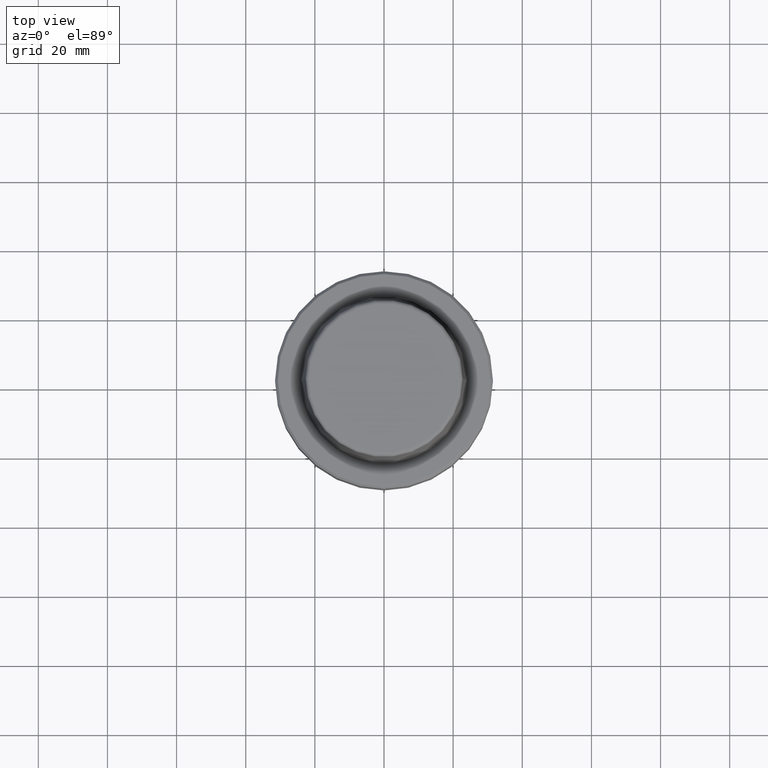
[diagram: clean part render]
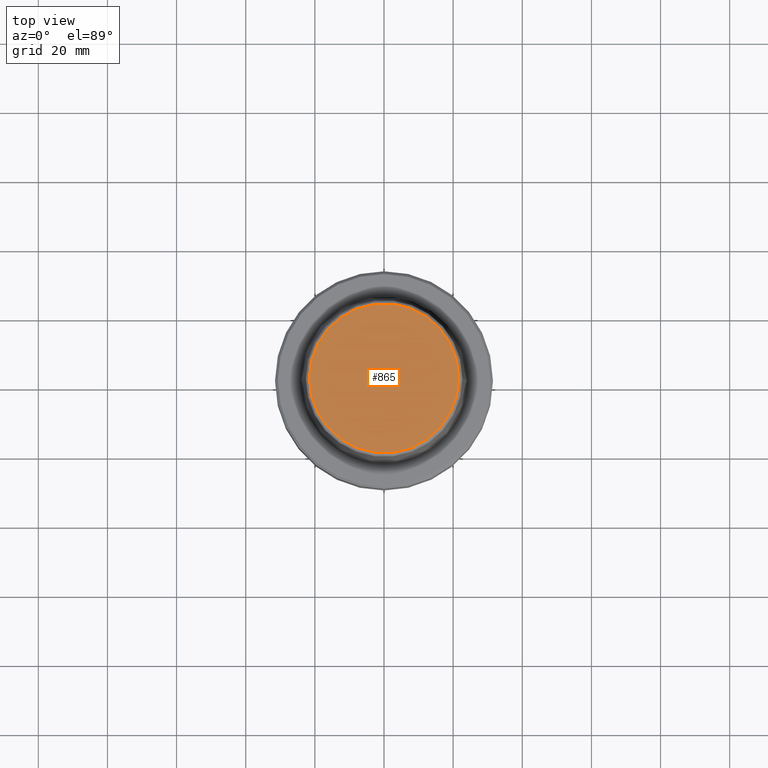
[diagram: same view with one face highlighted and labeled with its STEP entity id]
A machine part, top view. The second image highlights one B-rep face of the part: STEP entity #865.
In plain terms, the highlighted planar face has unit normal (0, 0, -1).
Its self-contained STEP definition (entity closure, byte-faithful):
#24 = CARTESIAN_POINT ( 'NONE',  ( 0.0000000000000000000, 0.0000000000000000000, 31.89999999999999900 ) ) ;
#41 = DIRECTION ( 'NONE',  ( 1.000000000000000000, 0.0000000000000000000, 0.0000000000000000000 ) ) ;
#153 = AXIS2_PLACEMENT_3D ( 'NONE', #713, #913, #328 ) ;
#175 = EDGE_CURVE ( 'NONE', #846, #964, #618, .T. ) ;
#223 = CARTESIAN_POINT ( 'NONE',  ( 21.58108272732117100, 0.0000000000000000000, 31.89999999999999900 ) ) ;
#245 = AXIS2_PLACEMENT_3D ( 'NONE', #894, #307, #988 ) ;
#307 = DIRECTION ( 'NONE',  ( -0.0000000000000000000, -0.0000000000000000000, 1.000000000000000000 ) ) ;
#328 = DIRECTION ( 'NONE',  ( -1.000000000000000000, 0.0000000000000000000, -0.0000000000000000000 ) ) ;
#383 = AXIS2_PLACEMENT_3D ( 'NONE', #24, #892, #41 ) ;
#393 = EDGE_LOOP ( 'NONE', ( #425, #774 ) ) ;
#425 = ORIENTED_EDGE ( 'NONE', *, *, #175, .T. ) ;
#520 = FACE_OUTER_BOUND ( 'NONE', #393, .T. ) ;
#618 = CIRCLE ( 'NONE', #383, 21.58108272732117100 ) ;
#713 = CARTESIAN_POINT ( 'NONE',  ( 0.0000000000000000000, 0.0000000000000000000, 31.89999999999999900 ) ) ;
#730 = EDGE_CURVE ( 'NONE', #964, #846, #1195, .T. ) ;
#774 = ORIENTED_EDGE ( 'NONE', *, *, #730, .T. ) ;
#846 = VERTEX_POINT ( 'NONE', #223 ) ;
#865 = ADVANCED_FACE ( 'NONE', ( #520 ), #1000, .F. ) ;
#892 = DIRECTION ( 'NONE',  ( -0.0000000000000000000, -0.0000000000000000000, 1.000000000000000000 ) ) ;
#894 = CARTESIAN_POINT ( 'NONE',  ( 0.0000000000000000000, 0.0000000000000000000, 31.89999999999999900 ) ) ;
#913 = DIRECTION ( 'NONE',  ( 0.0000000000000000000, 0.0000000000000000000, -1.000000000000000000 ) ) ;
#964 = VERTEX_POINT ( 'NONE', #1013 ) ;
#988 = DIRECTION ( 'NONE',  ( 1.000000000000000000, 0.0000000000000000000, 0.0000000000000000000 ) ) ;
#1000 = PLANE ( 'NONE',  #153 ) ;
#1013 = CARTESIAN_POINT ( 'NONE',  ( -21.58108272732117100, 2.716307157494421400E-015, 31.89999999999999900 ) ) ;
#1195 = CIRCLE ( 'NONE', #245, 21.58108272732117100 ) ;